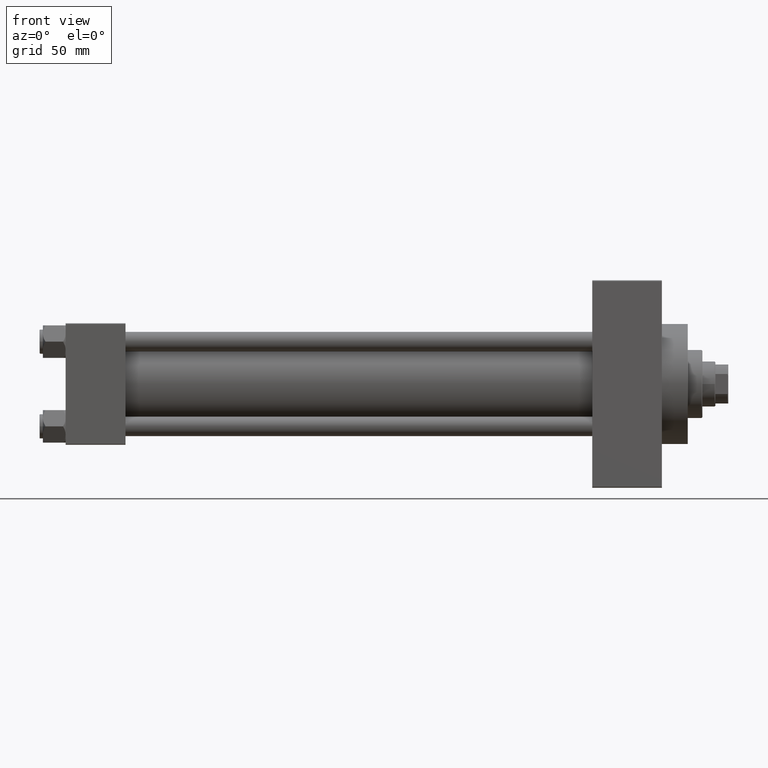
[diagram: clean part render]
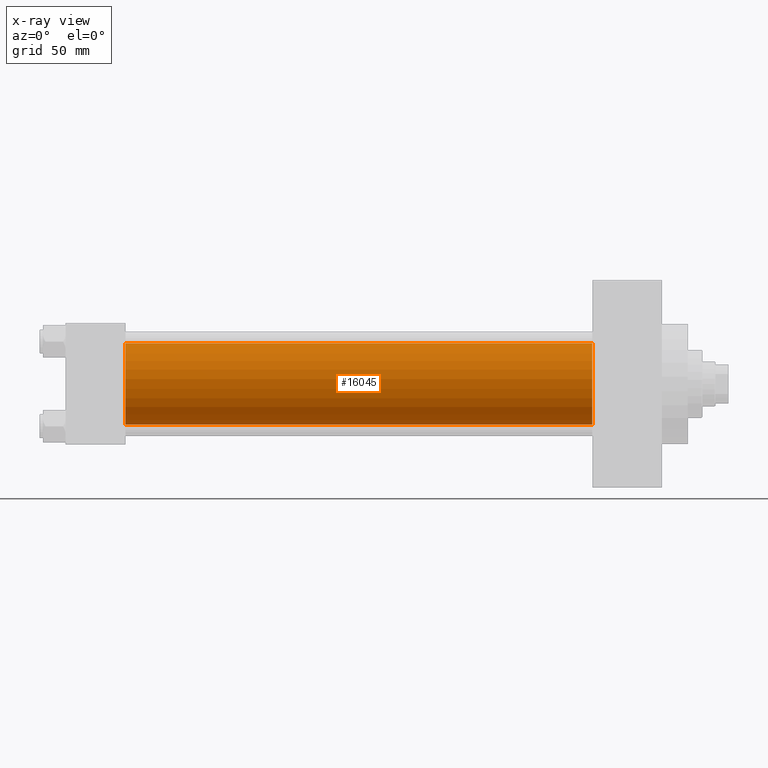
[diagram: x-ray — body ghosted, one internal face saturated and labeled with its STEP entity id]
A machine part, front view, then the same camera in x-ray: the body is ghosted and one INTERNAL B-rep face — a face not visible from any outside direction — is saturated and labeled: STEP entity #16045.
In plain terms, the highlighted cylindrical surface (partial cylindrical patch) has radius 25 mm, axis along (-1, -0, -0).
Its self-contained STEP definition (entity closure, byte-faithful):
#223 = DIRECTION ( 'NONE',  ( 0.000000000000000000, 0.000000000000000000, -1.000000000000000000 ) ) ;
#531 = AXIS2_PLACEMENT_3D ( 'NONE', #30852, #26875, #223 ) ;
#1073 = CARTESIAN_POINT ( 'NONE',  ( 324.9999999999999432, 4.595317839031724996E-16, -25.00000000000000000 ) ) ;
#1323 = LINE ( 'NONE', #1073, #16278 ) ;
#1324 = ORIENTED_EDGE ( 'NONE', *, *, #17023, .F. ) ;
#2132 = AXIS2_PLACEMENT_3D ( 'NONE', #37474, #25308, #38451 ) ;
#2984 = CIRCLE ( 'NONE', #531, 25.00000000000000000 ) ;
#4354 = EDGE_CURVE ( 'NONE', #14492, #28604, #8204, .T. ) ;
#5043 = AXIS2_PLACEMENT_3D ( 'NONE', #46016, #42518, #23083 ) ;
#6500 = CARTESIAN_POINT ( 'NONE',  ( 37.00000000000000000, -2.602085213965210642E-15, 25.00000000000000000 ) ) ;
#6947 = LINE ( 'NONE', #44780, #37162 ) ;
#8204 = CIRCLE ( 'NONE', #5043, 25.00000000000000000 ) ;
#13086 = ORIENTED_EDGE ( 'NONE', *, *, #4354, .T. ) ;
#13463 = CARTESIAN_POINT ( 'NONE',  ( 324.9999999999999432, -2.602085213965210642E-15, 25.00000000000000000 ) ) ;
#13521 = VERTEX_POINT ( 'NONE', #6500 ) ;
#14492 = VERTEX_POINT ( 'NONE', #13463 ) ;
#16045 = ADVANCED_FACE ( 'NONE', ( #18329 ), #22286, .F. ) ;
#16278 = VECTOR ( 'NONE', #27974, 1000.000000000000000 ) ;
#16285 = ORIENTED_EDGE ( 'NONE', *, *, #33247, .T. ) ;
#16803 = EDGE_CURVE ( 'NONE', #13521, #43124, #2984, .T. ) ;
#17023 = EDGE_CURVE ( 'NONE', #14492, #13521, #6947, .T. ) ;
#18329 = FACE_OUTER_BOUND ( 'NONE', #48679, .T. ) ;
#19741 = CARTESIAN_POINT ( 'NONE',  ( 324.9999999999999432, 4.595317839031724996E-16, -25.00000000000000000 ) ) ;
#22286 = CYLINDRICAL_SURFACE ( 'NONE', #2132, 25.00000000000000000 ) ;
#23083 = DIRECTION ( 'NONE',  ( 0.000000000000000000, 0.000000000000000000, -1.000000000000000000 ) ) ;
#25308 = DIRECTION ( 'NONE',  ( -1.000000000000000000, -0.000000000000000000, -0.000000000000000000 ) ) ;
#26875 = DIRECTION ( 'NONE',  ( 1.000000000000000000, 0.000000000000000000, 0.000000000000000000 ) ) ;
#27974 = DIRECTION ( 'NONE',  ( -1.000000000000000000, -0.000000000000000000, -0.000000000000000000 ) ) ;
#28604 = VERTEX_POINT ( 'NONE', #19741 ) ;
#30852 = CARTESIAN_POINT ( 'NONE',  ( 37.00000000000000000, -2.602085213965210642E-15, 0.000000000000000000 ) ) ;
#32801 = CARTESIAN_POINT ( 'NONE',  ( 37.00000000000000000, 4.595317839031724996E-16, -25.00000000000000000 ) ) ;
#33247 = EDGE_CURVE ( 'NONE', #28604, #43124, #1323, .T. ) ;
#34530 = DIRECTION ( 'NONE',  ( -1.000000000000000000, -0.000000000000000000, -0.000000000000000000 ) ) ;
#37162 = VECTOR ( 'NONE', #34530, 1000.000000000000000 ) ;
#37474 = CARTESIAN_POINT ( 'NONE',  ( 324.9999999999999432, -2.602085213965210642E-15, 0.000000000000000000 ) ) ;
#38451 = DIRECTION ( 'NONE',  ( 0.000000000000000000, 0.000000000000000000, 1.000000000000000000 ) ) ;
#42268 = ORIENTED_EDGE ( 'NONE', *, *, #16803, .F. ) ;
#42518 = DIRECTION ( 'NONE',  ( 1.000000000000000000, 0.000000000000000000, 0.000000000000000000 ) ) ;
#43124 = VERTEX_POINT ( 'NONE', #32801 ) ;
#44780 = CARTESIAN_POINT ( 'NONE',  ( 324.9999999999999432, -2.602085213965210642E-15, 25.00000000000000000 ) ) ;
#46016 = CARTESIAN_POINT ( 'NONE',  ( 324.9999999999999432, -2.602085213965210642E-15, 0.000000000000000000 ) ) ;
#48679 = EDGE_LOOP ( 'NONE', ( #13086, #16285, #42268, #1324 ) ) ;